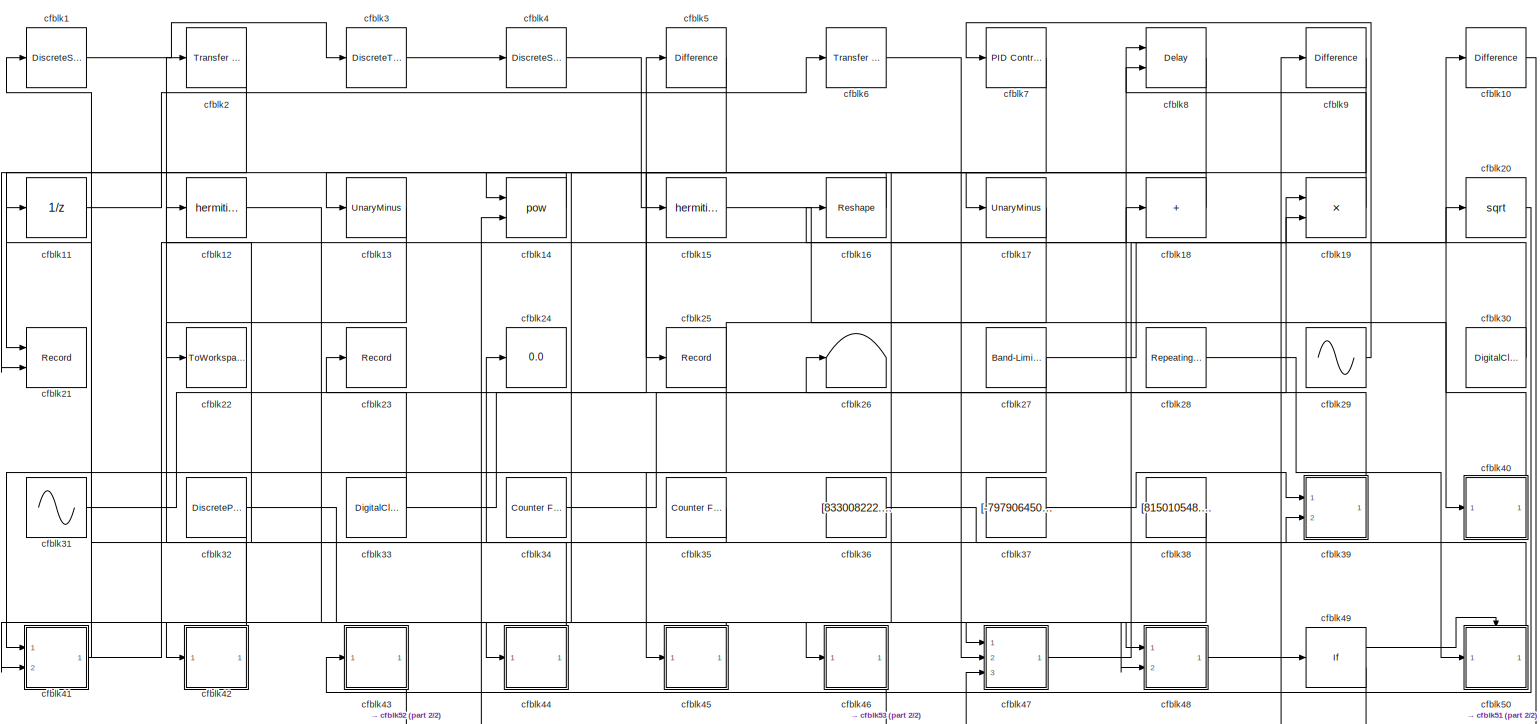
[diagram: root canvas - part 1/2, most of the canvas]
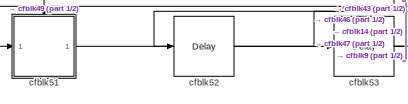
[diagram: root canvas - part 2/2, bottom left region]
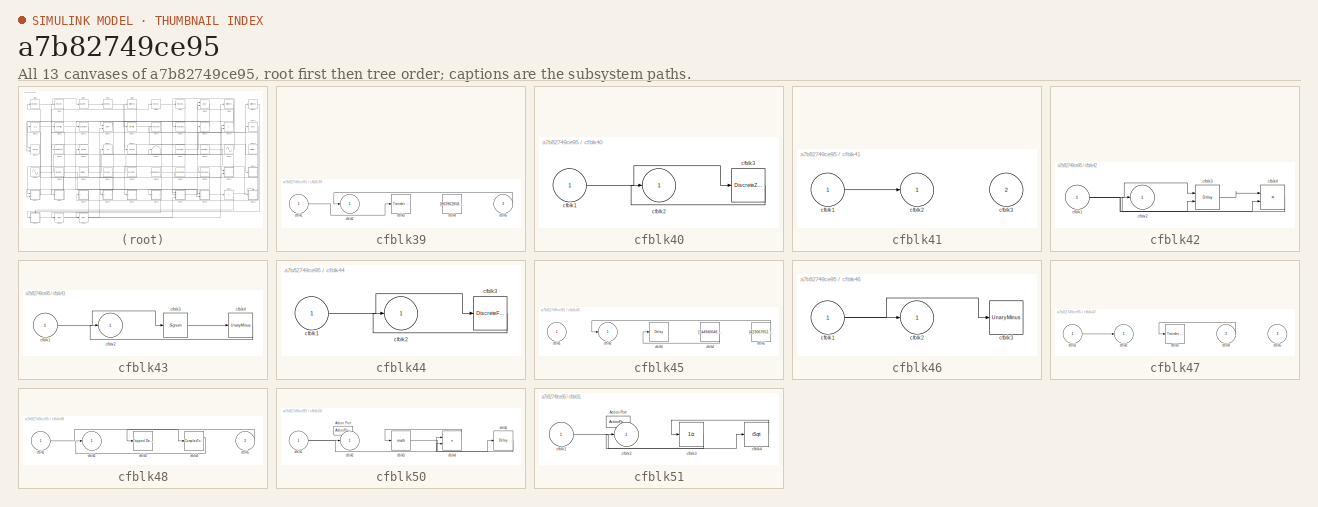
[diagram: thumbnail index - all 13 canvases of the model, root first then tree order]
MODEL slx_a7b82749ce95
KIND model
CONFIG AbsTol = auto
CONFIG EnableMultiTasking = off
CONFIG FixedStep = auto
CONFIG MaxStep = auto
CONFIG MinStep = auto
CONFIG RelTol = 1e-3
CONFIG SampleTimeConstraint = Unconstrained
CONFIG SolverName = VariableStepAuto
CONFIG StartTime = 0.0
CONFIG StopTime = 10.0
BLOCK [DiscreteStateSpace] cfblk1
BLOCK [Reference] cfblk10  REF=simulink/Discrete/Difference
  Ports = [1, 1]
  SourceBlock = simulink/Discrete/Difference
  SourceProductBaseCode = SL
  SourceType = Difference
BLOCK [UnitDelay] cfblk11
  HasFrameUpgradeWarning = on
BLOCK [Math] cfblk12
  Operator = hermitian
  Ports = [1, 1]
BLOCK [UnaryMinus] cfblk13
BLOCK [Math] cfblk14
  Operator = pow
  Ports = [2, 1]
BLOCK [Math] cfblk15
  Operator = hermitian
  Ports = [1, 1]
BLOCK [Reshape] cfblk16
  Ports = [1, 1]
BLOCK [UnaryMinus] cfblk17
BLOCK [Sum] cfblk18
  IconShape = rectangular
  Inputs = +
  Ports = [1, 1]
BLOCK [Product] cfblk19
  Inputs = **
  Ports = [2, 1]
BLOCK [Reference] cfblk2  REF=simulink/Discrete/Transfer Fcn
First Order
  Ports = [1, 1]
  SourceBlock = simulink/Discrete/Transfer Fcn\nFirst Order
  SourceProductBaseCode = SL
  SourceType = First Order Transfer Fcn
BLOCK [Sqrt] cfblk20
BLOCK [Record] cfblk21
  CompatibilityTag = XY
  FileSettingsInternal = {"entries":[{"content":{"excelSettings":{"content":{},"type":"Streamout.ExcelSettings"}},"type":"Streamout.FileSettingStorage","uuid":"d347088c-f2a3-4774-acaa-905cd5588dd1"}],"packageUris":["http://schema.mathworks.com/mf0/streamout_blocks/R2020a"],"version":"1.0"}
  Layout = [1 1]
  Ports = [2]
  SignalsInternal = {"entries":[{"content":{"signals":[{"content":{"blockPath":["sampleModel22/cfblk21"],"channel":[],"dimensions":[1],"domain":"sampleModel22/cfblk21","lineColor":"#a2142f","plots":[1],"port":1,"sid":[""],"signalID":900,"signalName":"cfblk2"},"type":"RecordBlkView.Signal","uuid":"72cce9bf-5026-4949-b22a-9a70ffc16a04"},{"content":{"blockPath":["sampleModel22/cfblk21"],"channel":[],"dimensions":[1],"do...<+375ch>
  VisualizationBindings = {"xyplotplugin":{"info":[{"series":[{"bindingParametersList":[{"parameter":"X-Axis","signalID":900,"signalName":"cfblk2"},{"parameter":"Y-Axis","signalID":904,"signalName":"cfblk7"}],"seriesID":42425}],"subplotID":1}]}}
BLOCK [ToWorkspace] cfblk22
  FixptAsFi = on
  MaxDataPoints = inf
  Ports = [1]
  SampleTime = -1
  SaveFormat = Timeseries
  VariableName = xfvdlws
BLOCK [Record] cfblk23
  FileSettingsInternal = {"entries":[{"content":{"excelSettings":{"content":{},"type":"Streamout.ExcelSettings"}},"type":"Streamout.FileSettingStorage","uuid":"aba5f315-0ffa-4260-b08e-6ada968d828a"}],"packageUris":["http://schema.mathworks.com/mf0/streamout_blocks/R2020a"],"version":"1.0"}
  Ports = [1]
  SignalsInternal = {"entries":[{"content":{"signals":[{"content":{"blockPath":["sampleModel22/cfblk23"],"channel":[],"dimensions":[1],"domain":"sampleModel22/cfblk23","lineColor":"#64d413","plots":[1],"port":1,"sid":[""],"signalID":908,"signalName":"cfblk33"},"type":"RecordBlkView.Signal","uuid":"00477b48-f975-47f7-aa1d-9a892664fb2a"}]},"type":"RecordBlkView.InputSignals","uuid":"32843abc-300b-4a92-8da5-51a580ef2afe...<+94ch>
  VisualizationBindings = {"sparklinesplugin":{"info":[{"bindingParametersList":[],"subplotID":1}]}}
BLOCK [Display] cfblk24
  Decimation = 1
  Ports = [1]
BLOCK [Record] cfblk25
  FileSettingsInternal = {"entries":[{"content":{"excelSettings":{"content":{},"type":"Streamout.ExcelSettings"}},"type":"Streamout.FileSettingStorage","uuid":"a09df4a2-82cf-4162-b1e9-cd908c00b4bb"}],"packageUris":["http://schema.mathworks.com/mf0/streamout_blocks/R2020a"],"version":"1.0"}
  Ports = [1]
  SignalsInternal = {"entries":[{"content":{"signals":[{"content":{"blockPath":["sampleModel22/cfblk25"],"channel":[],"dimensions":[1],"domain":"sampleModel22/cfblk25","lineColor":"#ff13a6","plots":[1],"port":1,"sid":[""],"signalID":912,"signalName":"cfblk5"},"type":"RecordBlkView.Signal","uuid":"83a76baf-6ea0-4cc0-9cd0-b4f16879e093"}]},"type":"RecordBlkView.InputSignals","uuid":"d9d92264-43dd-4799-a9ea-abcf50968a61"...<+93ch>
  VisualizationBindings = {"sparklinesplugin":{"info":[{"bindingParametersList":[],"subplotID":1}]}}
BLOCK [Terminator] cfblk26
BLOCK [Reference] cfblk27  REF=simulink/Sources/Band-Limited
White Noise
  Ports = [0, 1]
  SourceBlock = simulink/Sources/Band-Limited\nWhite Noise
  SourceProductBaseCode = SL
  SourceType = Band-Limited White Noise.
BLOCK [Reference] cfblk28  REF=simulink/Sources/Repeating
Sequence
  Ports = [0, 1]
  SourceBlock = simulink/Sources/Repeating\nSequence
  SourceProductBaseCode = SL
  SourceType = Repeating table
BLOCK [Sin] cfblk29
  Amplitude = [-948431688.326203]
  Bias = [692953871.845322]
  Ports = [0, 1]
  SampleTime = 0
BLOCK [DiscreteTransferFcn] cfblk3
  InputPortMap = u0
  Ports = [1, 1]
  SampleTime = 1
BLOCK [DigitalClock] cfblk30
BLOCK [Sin] cfblk31
  Amplitude = [-970274407.735577]
  Bias = [100831776.825705]
  Ports = [0, 1]
  SampleTime = 0
BLOCK [DiscretePulseGenerator] cfblk32
  Amplitude = [-760657684.991832]
  Period = [58794913.073271]
  PhaseDelay = [6.000000]
  Ports = [0, 1]
  PulseType = Time based
  PulseWidth = 5
BLOCK [DigitalClock] cfblk33
BLOCK [Reference] cfblk34  REF=simulink/Sources/Counter
Free-Running
  Ports = [0, 1]
  SourceBlock = simulink/Sources/Counter\nFree-Running
  SourceProductBaseCode = SL
  SourceType = Counter Free-Running
BLOCK [Reference] cfblk35  REF=simulink/Sources/Counter
Free-Running
  Ports = [0, 1]
  SourceBlock = simulink/Sources/Counter\nFree-Running
  SourceProductBaseCode = SL
  SourceType = Counter Free-Running
BLOCK [Constant] cfblk36
  SampleTime = 1
  Value = [833008222.021323]
BLOCK [Constant] cfblk37
  SampleTime = 1
  Value = [-797906450.866980]
BLOCK [Constant] cfblk38
  SampleTime = 1
  Value = [815010548.139459]
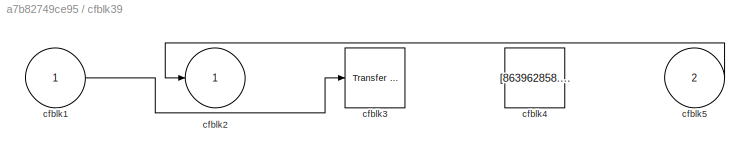
BLOCK [SubSystem] cfblk39
  Ports = [2, 1]
  RequestExecContextInheritance = off
BLOCK [Inport] cfblk39/cfblk1
BLOCK [Outport] cfblk39/cfblk2
BLOCK [Reference] cfblk39/cfblk3  REF=simulink/Discrete/Transfer Fcn
First Order
  Ports = [1, 1]
  SourceBlock = simulink/Discrete/Transfer Fcn\nFirst Order
  SourceProductBaseCode = SL
  SourceType = First Order Transfer Fcn
BLOCK [Constant] cfblk39/cfblk4
  SampleTime = 1
  Value = [863962858.985315]
BLOCK [Inport] cfblk39/cfblk5
  Port = 2
BLOCK [DiscreteStateSpace] cfblk4
BLOCK [SubSystem] cfblk40
  Ports = [1, 1]
  RequestExecContextInheritance = off
BLOCK [Inport] cfblk40/cfblk1
BLOCK [Outport] cfblk40/cfblk2
BLOCK [DiscreteZeroPole] cfblk40/cfblk3
  Gain = 1
  Poles = [0 0.5]
BLOCK [SubSystem] cfblk41
  Ports = [2, 1]
  RequestExecContextInheritance = off
BLOCK [Inport] cfblk41/cfblk1
BLOCK [Outport] cfblk41/cfblk2
BLOCK [Inport] cfblk41/cfblk3
  Port = 2
BLOCK [SubSystem] cfblk42
  Ports = [1, 1]
  RequestExecContextInheritance = off
BLOCK [Inport] cfblk42/cfblk1
BLOCK [Outport] cfblk42/cfblk2
BLOCK [Delay] cfblk42/cfblk3
  DelayLengthSource = Input port
  InputPortMap = u0,p1
  Ports = [2, 1]
  SampleTime = 1
BLOCK [Product] cfblk42/cfblk4
  Ports = [2, 1]
BLOCK [SubSystem] cfblk43
  Ports = [1, 1]
  RequestExecContextInheritance = off
BLOCK [Inport] cfblk43/cfblk1
BLOCK [Outport] cfblk43/cfblk2
BLOCK [Signum] cfblk43/cfblk3
BLOCK [UnaryMinus] cfblk43/cfblk4
BLOCK [SubSystem] cfblk44
  Ports = [1, 1]
  RequestExecContextInheritance = off
BLOCK [Inport] cfblk44/cfblk1
BLOCK [Outport] cfblk44/cfblk2
BLOCK [DiscreteFilter] cfblk44/cfblk3
  InputPortMap = u0
  Ports = [1, 1]
  SampleTime = 1
BLOCK [SubSystem] cfblk45
  Ports = [1, 1]
  RequestExecContextInheritance = off
BLOCK [Inport] cfblk45/cfblk1
BLOCK [Outport] cfblk45/cfblk2
BLOCK [Delay] cfblk45/cfblk3
  InputPortMap = u0
  Ports = [1, 1]
  SampleTime = 1
BLOCK [Constant] cfblk45/cfblk4
  SampleTime = 1
  Value = [144940648.486911]
BLOCK [Constant] cfblk45/cfblk5
  SampleTime = 1
  Value = [423067952.742382]
BLOCK [SubSystem] cfblk46
  Ports = [1, 1]
  RequestExecContextInheritance = off
BLOCK [Inport] cfblk46/cfblk1
BLOCK [Outport] cfblk46/cfblk2
BLOCK [UnaryMinus] cfblk46/cfblk3
BLOCK [SubSystem] cfblk47
  Ports = [3, 1]
  RequestExecContextInheritance = off
BLOCK [Inport] cfblk47/cfblk1
BLOCK [Outport] cfblk47/cfblk2
BLOCK [Reference] cfblk47/cfblk3  REF=simulink/Discrete/Transfer Fcn
Real Zero
  Ports = [1, 1]
  SourceBlock = simulink/Discrete/Transfer Fcn\nReal Zero
  SourceProductBaseCode = SL
  SourceType = Transfer Fcn Real Zero
BLOCK [Inport] cfblk47/cfblk4
  Port = 2
BLOCK [Inport] cfblk47/cfblk5
  Port = 3
BLOCK [SubSystem] cfblk48
  Ports = [2, 1]
  RequestExecContextInheritance = off
BLOCK [Inport] cfblk48/cfblk1
BLOCK [Outport] cfblk48/cfblk2
BLOCK [Reference] cfblk48/cfblk3  REF=simulink/Discrete/Tapped Delay
  Ports = [1, 1]
  SourceBlock = simulink/Discrete/Tapped Delay
  SourceProductBaseCode = SL
  SourceType = Tapped Delay Line
BLOCK [ComplexToMagnitudeAngle] cfblk48/cfblk4
  Ports = [1, 2]
BLOCK [Inport] cfblk48/cfblk5
  Port = 2
BLOCK [If] cfblk49
  IfExpression = u1 >= 0
  Ports = [1, 2]
  SampleTime = 1
BLOCK [Reference] cfblk5  REF=simulink/Discrete/Difference
  Ports = [1, 1]
  SourceBlock = simulink/Discrete/Difference
  SourceProductBaseCode = SL
  SourceType = Difference
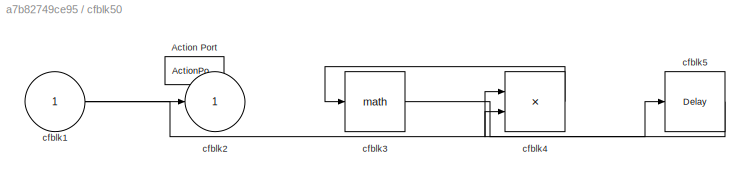
BLOCK [SubSystem] cfblk50
  Ports = [1, 1, 0, 0, 0, 0, 0, 1]
  RequestExecContextInheritance = off
  TreatAsAtomicUnit = on
BLOCK [ActionPort] cfblk50/Action Port
  ActionPortLabel = if(u1 >= 0)
BLOCK [Inport] cfblk50/cfblk1
BLOCK [Outport] cfblk50/cfblk2
BLOCK [Math] cfblk50/cfblk3
  Ports = [1, 1]
BLOCK [Product] cfblk50/cfblk4
  Inputs = **
  Ports = [2, 1]
BLOCK [Delay] cfblk50/cfblk5
  InputPortMap = u0
  Ports = [1, 1]
BLOCK [SubSystem] cfblk51
  Ports = [1, 1, 0, 0, 0, 0, 0, 1]
  RequestExecContextInheritance = off
  TreatAsAtomicUnit = on
BLOCK [ActionPort] cfblk51/Action Port
  ActionPortLabel = else
BLOCK [Inport] cfblk51/cfblk1
BLOCK [Outport] cfblk51/cfblk2
BLOCK [UnitDelay] cfblk51/cfblk3
  HasFrameUpgradeWarning = on
  SampleTime = -1
BLOCK [Sqrt] cfblk51/cfblk4
  AlgorithmType = Newton-Raphson
  Operator = rSqrt
BLOCK [Delay] cfblk52
  InputPortMap = u0
  Ports = [1, 1]
  SampleTime = 1
BLOCK [Delay] cfblk53
  InputPortMap = u0
  Ports = [1, 1]
  SampleTime = 1
BLOCK [Reference] cfblk6  REF=simulink/Discrete/Transfer Fcn
First Order
  Ports = [1, 1]
  SourceBlock = simulink/Discrete/Transfer Fcn\nFirst Order
  SourceProductBaseCode = SL
  SourceType = First Order Transfer Fcn
BLOCK [Reference] cfblk7  REF=slpidlib/PID Controller
  Ports = [1, 1]
  SourceBlock = slpidlib/PID Controller
  SourceProductBaseCode = SL
  SourceType = PID 1dof
BLOCK [Delay] cfblk8
  DelayLengthSource = Input port
  InputPortMap = u0,p1
  Ports = [2, 1]
  SampleTime = 1
BLOCK [Reference] cfblk9  REF=simulink/Discrete/Difference
  Ports = [1, 1]
  SourceBlock = simulink/Discrete/Difference
  SourceProductBaseCode = SL
  SourceType = Difference
LINE cfblk10:1 -> cfblk51:1
LINE cfblk11:1 -> cfblk6:1
LINE cfblk12:1 -> cfblk47:2
LINE cfblk13:1 -> cfblk22:1
LINE cfblk14:1 -> cfblk13:1
LINE cfblk15:1 -> cfblk40:1
LINE cfblk16:1 -> cfblk14:1
LINE cfblk17:1 -> cfblk45:1
LINE cfblk18:1 -> cfblk17:1
LINE cfblk19:1 -> cfblk8:2
LINE cfblk1:1 -> cfblk3:1
LINE cfblk20:1 -> cfblk43:1
NET cfblk27:1 -> cfblk19:2, cfblk41:1
LINE cfblk28:1 -> cfblk50:1
LINE cfblk29:1 -> cfblk7:1
LINE cfblk2:1 -> cfblk21:1
LINE cfblk30:1 -> cfblk16:1
LINE cfblk31:1 -> cfblk8:1
NET cfblk32:1 -> cfblk41:2, cfblk48:2
NET cfblk33:1 -> cfblk23:1, cfblk5:1
LINE cfblk34:1 -> cfblk19:1
LINE cfblk35:1 -> cfblk2:1
LINE cfblk36:1 -> cfblk39:2
LINE cfblk37:1 -> cfblk39:1
LINE cfblk38:1 -> cfblk47:1
LINE cfblk39/cfblk1:1 -> cfblk39/cfblk3:1
LINE cfblk39/cfblk5:1 -> cfblk39/cfblk2:1
LINE cfblk39:1 -> cfblk26:1
LINE cfblk3:1 -> cfblk4:1
LINE cfblk40/cfblk1:1 -> cfblk40/cfblk3:1
LINE cfblk40/cfblk3:1 -> cfblk40/cfblk2:1
LINE cfblk40:1 -> cfblk10:1
LINE cfblk41/cfblk1:1 -> cfblk41/cfblk2:1
NET cfblk41:1 -> cfblk18:1, cfblk1:1
NET cfblk42/cfblk1:1 -> cfblk42/cfblk3:1, cfblk42/cfblk3:2, cfblk42/cfblk4:2
LINE cfblk42/cfblk3:1 -> cfblk42/cfblk4:1
LINE cfblk42/cfblk4:1 -> cfblk42/cfblk2:1
LINE cfblk42:1 -> cfblk11:1
LINE cfblk43/cfblk1:1 -> cfblk43/cfblk3:1
LINE cfblk43/cfblk3:1 -> cfblk43/cfblk4:1
LINE cfblk43/cfblk4:1 -> cfblk43/cfblk2:1
LINE cfblk43:1 -> cfblk52:1
LINE cfblk44/cfblk1:1 -> cfblk44/cfblk3:1
LINE cfblk44/cfblk3:1 -> cfblk44/cfblk2:1
LINE cfblk44:1 -> cfblk12:1
LINE cfblk45/cfblk4:1 -> cfblk45/cfblk3:1
LINE cfblk45/cfblk5:1 -> cfblk45/cfblk2:1
LINE cfblk45:1 -> cfblk42:1
NET cfblk46/cfblk1:1 -> cfblk46/cfblk2:1, cfblk46/cfblk3:1
LINE cfblk46:1 -> cfblk53:1
LINE cfblk47/cfblk1:1 -> cfblk47/cfblk2:1
LINE cfblk47/cfblk4:1 -> cfblk47/cfblk3:1
LINE cfblk47:1 -> cfblk20:1
LINE cfblk48/cfblk1:1 -> cfblk48/cfblk4:1
LINE cfblk48/cfblk4:1 -> cfblk48/cfblk2:1
LINE cfblk48/cfblk5:1 -> cfblk48/cfblk3:1
LINE cfblk48:1 -> cfblk49:1
LINE cfblk49:1 -> cfblk50:ifaction
LINE cfblk49:2 -> cfblk51:ifaction
LINE cfblk4:1 -> cfblk15:1
NET cfblk50/cfblk1:1 -> cfblk50/cfblk2:1, cfblk50/cfblk4:1
LINE cfblk50/cfblk3:1 -> cfblk50/cfblk5:1
LINE cfblk50/cfblk4:1 -> cfblk50/cfblk3:1
LINE cfblk50/cfblk5:1 -> cfblk50/cfblk4:2
LINE cfblk50:1 -> cfblk24:1
LINE cfblk51/cfblk1:1 -> cfblk51/cfblk4:1
LINE cfblk51/cfblk3:1 -> cfblk51/cfblk2:1
LINE cfblk51/cfblk4:1 -> cfblk51/cfblk3:1
LINE cfblk51:1 -> cfblk14:2
LINE cfblk52:1 -> cfblk47:3
LINE cfblk53:1 -> cfblk9:1
LINE cfblk5:1 -> cfblk25:1
LINE cfblk6:1 -> cfblk48:1
LINE cfblk7:1 -> cfblk21:2
LINE cfblk8:1 -> cfblk44:1
LINE cfblk9:1 -> cfblk46:1
note: NET lines group one-source signal fan-out (src -> all destinations, sorted); 1:1 wires keep LINE
